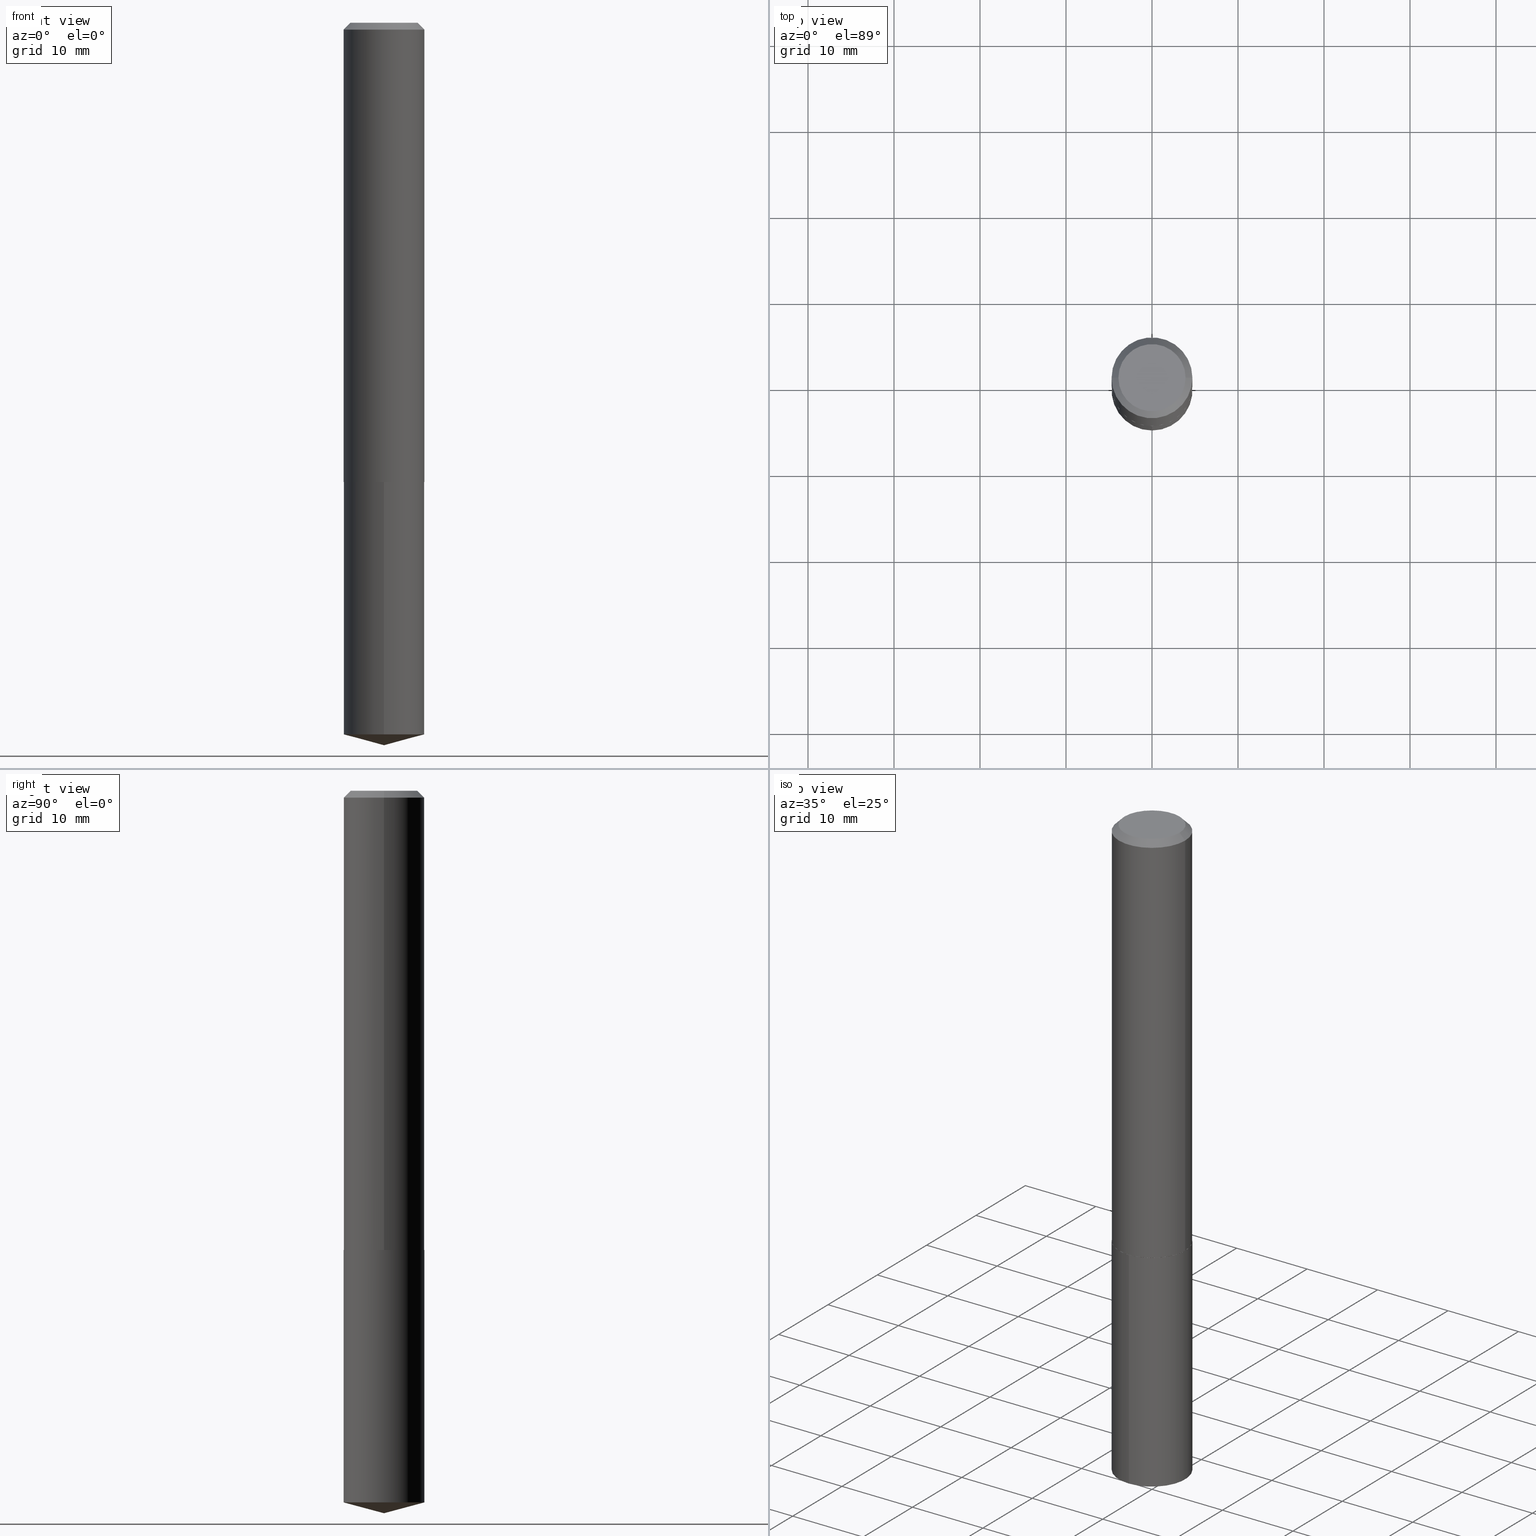
[diagram: canonical four-view strip — front | top / right | iso, engineering-drawing reading convention]
A machine part, canonical four-view strip (front | top / right | iso — engineering-drawing reading convention). The complete STEP part file that produces these views, byte-faithful:
ISO-10303-21;
HEADER;
FILE_DESCRIPTION (( 'STEP AP203' ),
    '1' );
FILE_NAME ('63083.STEP',
    '2024-04-23T09:47:31',
    ( '' ),
    ( '' ),
    'SwSTEP 2.0',
    'SolidWorks 2023',
    '' );
FILE_SCHEMA (( 'CONFIG_CONTROL_DESIGN' ));
ENDSEC;

DATA;
#1 = CARTESIAN_POINT ( 'NONE',  ( 5.140130883720539947E-29, -7.338744626114409370E-15, -2.101900000000000546 ) ) ;
#2 = VECTOR ( 'NONE', #124, 39.37007874015748143 ) ;
#3 = DIRECTION ( 'NONE',  ( 1.000000000000000000, -6.982962677686267499E-15, 4.876175355846217494E-29 ) ) ;
#4 = CARTESIAN_POINT ( 'NONE',  ( -0.1850500000000000200, 1.183088451666994778E-15, -0.03125000000000021511 ) ) ;
#5 = CARTESIAN_POINT ( 'NONE',  ( 5.140130883720539947E-29, -7.338744626114409370E-15, -2.101900000000000546 ) ) ;
#6 = PRODUCT_RELATED_PRODUCT_CATEGORY ( 'detail', '', ( #90 ) ) ;
#7 = CIRCLE ( 'NONE', #369, 0.1537999999999999645 ) ;
#8 = DIRECTION ( 'NONE',  ( -1.000000000000000000, 6.982962677686265922E-15, -4.876176775795935793E-29 ) ) ;
#9 = CARTESIAN_POINT ( 'NONE',  ( 0.1850500000000002143, -8.630941869620254432E-15, -2.101900000000000546 ) ) ;
#10 = ADVANCED_FACE ( 'NONE', ( #360 ), #247, .T. ) ;
#11 = ORIENTED_EDGE ( 'NONE', *, *, #121, .T. ) ;
#12 = DIRECTION ( 'NONE',  ( -2.445468806185136597E-29, 3.491481338843145583E-15, 1.000000000000000000 ) ) ;
#13 = AXIS2_PLACEMENT_3D ( 'NONE', #324, #278, #215 ) ;
#14 = CONICAL_SURFACE ( 'NONE', #256, 0.1850500000000002143, 0.7853981633974141952 ) ;
#15 = DIRECTION ( 'NONE',  ( -2.445315056571583283E-29, 3.491701517040638842E-15, 1.000000000000000000 ) ) ;
#16 = ORIENTED_EDGE ( 'NONE', *, *, #366, .F. ) ;
#17 = CARTESIAN_POINT ( 'NONE',  ( 5.141353618123632749E-29, -7.340490366783830084E-15, -2.102400000000000713 ) ) ;
#18 = VERTEX_POINT ( 'NONE', #44 ) ;
#19 = APPROVAL_ROLE ( '' ) ;
#20 = VERTEX_POINT ( 'NONE', #347 ) ;
#21 = PERSON_AND_ORGANIZATION_ROLE ( 'creator' ) ;
#22 = CARTESIAN_POINT ( 'NONE',  ( 8.087553578885345458E-29, -1.154648028172027664E-14, -3.307100000000000151 ) ) ;
#23 = AXIS2_PLACEMENT_3D ( 'NONE', #102, #218, #259 ) ;
#24 = ORIENTED_EDGE ( 'NONE', *, *, #111, .F. ) ;
#25 = CALENDAR_DATE ( 2024, 23, 4 ) ;
#26 = DIRECTION ( 'NONE',  ( 1.000000000000000000, -6.982962677686268288E-15, 0.000000000000000000 ) ) ;
#27 = DATE_TIME_ROLE ( 'creation_date' ) ;
#28 = ORIENTED_EDGE ( 'NONE', *, *, #43, .T. ) ;
#29 = LINE ( 'NONE', #151, #192 ) ;
#30 = ORIENTED_EDGE ( 'NONE', *, *, #121, .F. ) ;
#31 = APPROVAL ( #140, 'UNSPECIFIED' ) ;
#32 = DIRECTION ( 'NONE',  ( -2.445315056571583283E-29, 3.491701517040638842E-15, 1.000000000000000000 ) ) ;
#33 = AXIS2_PLACEMENT_3D ( 'NONE', #269, #83, #81 ) ;
#34 = DIRECTION ( 'NONE',  ( -2.445468806185136597E-29, 3.491481338843145583E-15, 1.000000000000000000 ) ) ;
#35 = LOCAL_TIME ( 5, 47, 31.00000000000000000, #267 ) ;
#36 = FACE_OUTER_BOUND ( 'NONE', #330, .T. ) ;
#37 = CARTESIAN_POINT ( 'NONE',  ( 7.965976169755803543E-29, -1.137381066311781496E-14, -3.257516001940621742 ) ) ;
#38 = AXIS2_PLACEMENT_3D ( 'NONE', #183, #317, #42 ) ;
#39 = DIRECTION ( 'NONE',  ( 1.000000000000000000, -6.982962677686268288E-15, 0.000000000000000000 ) ) ;
#40 = DIRECTION ( 'NONE',  ( -2.445315056571583283E-29, 3.491701517040638842E-15, 1.000000000000000000 ) ) ;
#41 = VERTEX_POINT ( 'NONE', #186 ) ;
#42 = DIRECTION ( 'NONE',  ( 1.000000000000000000, -6.982962677686265922E-15, 0.000000000000000000 ) ) ;
#43 = EDGE_CURVE ( 'NONE', #315, #116, #270, .T. ) ;
#44 = CARTESIAN_POINT ( 'NONE',  ( -0.1537999999999999645, 1.128534055747571411E-15, 2.449293598217711460E-19 ) ) ;
#45 = ORIENTED_EDGE ( 'NONE', *, *, #364, .F. ) ;
#46 = FACE_OUTER_BOUND ( 'NONE', #162, .T. ) ;
#47 = EDGE_LOOP ( 'NONE', ( #318, #104, #11, #108 ) ) ;
#48 =( NAMED_UNIT ( * ) SI_UNIT ( $, .STERADIAN. ) SOLID_ANGLE_UNIT ( ) );
#49 = LINE ( 'NONE', #281, #113 ) ;
#50 = ORIENTED_EDGE ( 'NONE', *, *, #364, .T. ) ;
#51 = CYLINDRICAL_SURFACE ( 'NONE', #33, 0.1850500000000001311 ) ;
#52 = MANIFOLD_SOLID_BREP ( 'Body-Move/Copy2[1]', #177 ) ;
#53 = LOCAL_TIME ( 5, 47, 31.00000000000000000, #286 ) ;
#54 = ORIENTED_EDGE ( 'NONE', *, *, #161, .F. ) ;
#55 = EDGE_CURVE ( 'NONE', #252, #71, #283, .T. ) ;
#56 = DIRECTION ( 'NONE',  ( 6.863315791527696626E-15, 0.9659258262890698665, 0.2588190451025147998 ) ) ;
#57 = MANIFOLD_SOLID_BREP ( 'Body-Move/Copy2[2]', #213 ) ;
#58 = EDGE_CURVE ( 'NONE', #41, #71, #288, .T. ) ;
#59 = ORIENTED_EDGE ( 'NONE', *, *, #260, .T. ) ;
#60 = ORIENTED_EDGE ( 'NONE', *, *, #139, .F. ) ;
#61 = APPROVAL_PERSON_ORGANIZATION ( #147, #31, #262 ) ;
#62 = APPROVAL_STATUS ( 'not_yet_approved' ) ;
#63 = CARTESIAN_POINT ( 'NONE',  ( -0.1850500000000001311, 1.314859332524066325E-15, -9.102489384516709155E-30 ) ) ;
#64 = PERSON_AND_ORGANIZATION ( #216, #178 ) ;
#65 = CARTESIAN_POINT ( 'NONE',  ( 5.141353618123632749E-29, -7.340490366783830084E-15, -2.102400000000000713 ) ) ;
#66 = CIRCLE ( 'NONE', #13, 0.1850500000000000200 ) ;
#67 = APPROVAL_PERSON_ORGANIZATION ( #201, #77, #150 ) ;
#68 = DIRECTION ( 'NONE',  ( 2.438088387897960049E-29, -3.491481338843145188E-15, -1.000000000000000000 ) ) ;
#69 = PRODUCT_DEFINITION_SHAPE ( 'NONE', 'NONE',  #372 ) ;
#70 = DIRECTION ( 'NONE',  ( -2.445315056571583283E-29, 3.491701517040638842E-15, 1.000000000000000000 ) ) ;
#71 = VERTEX_POINT ( 'NONE', #128 ) ;
#72 = PLANE ( 'NONE',  #376 ) ;
#73 = DIRECTION ( 'NONE',  ( 0.7071067811865232589, -2.468850131082003836E-15, 0.7071067811865715536 ) ) ;
#74 = ORIENTED_EDGE ( 'NONE', *, *, #139, .T. ) ;
#75 = PERSON_AND_ORGANIZATION_ROLE ( 'creator' ) ;
#76 = EDGE_LOOP ( 'NONE', ( #146, #380, #165, #187 ) ) ;
#77 = APPROVAL ( #62, 'UNSPECIFIED' ) ;
#78 = FACE_OUTER_BOUND ( 'NONE', #106, .T. ) ;
#79 = VERTEX_POINT ( 'NONE', #223 ) ;
#80 = PERSON_AND_ORGANIZATION ( #216, #178 ) ;
#81 = DIRECTION ( 'NONE',  ( 1.000000000000000000, -6.982962677686267499E-15, 4.876176775795935793E-29 ) ) ;
#82 = ADVANCED_FACE ( 'NONE', ( #46 ), #131, .T. ) ;
#83 = DIRECTION ( 'NONE',  ( -2.445468806185136597E-29, 3.491481338843145583E-15, 1.000000000000000000 ) ) ;
#84 = AXIS2_PLACEMENT_3D ( 'NONE', #37, #70, #343 ) ;
#85 = EDGE_LOOP ( 'NONE', ( #295, #60, #250, #325 ) ) ;
#86 = AXIS2_PLACEMENT_3D ( 'NONE', #87, #327, #173 ) ;
#87 = CARTESIAN_POINT ( 'NONE',  ( 5.141353618123632749E-29, -7.340490366783830084E-15, -2.102400000000000713 ) ) ;
#88 = DESIGN_CONTEXT ( 'detailed design', #313, 'design' ) ;
#89 = CARTESIAN_POINT ( 'NONE',  ( 5.141353618123632749E-29, -7.340490366783830084E-15, -2.102400000000000713 ) ) ;
#90 = PRODUCT ( '63083', '63083', '', ( #137 ) ) ;
#91 = FACE_OUTER_BOUND ( 'NONE', #76, .T. ) ;
#92 = CONICAL_SURFACE ( 'NONE', #320, 146.9311341562565758, 1.308996938995749870 ) ;
#93 = FACE_OUTER_BOUND ( 'NONE', #176, .T. ) ;
#94 = EDGE_CURVE ( 'NONE', #71, #138, #66, .T. ) ;
#95 = EDGE_CURVE ( 'NONE', #200, #266, #49, .T. ) ;
#96 = DIRECTION ( 'NONE',  ( -2.438088387897960049E-29, 3.491481338843145188E-15, 1.000000000000000000 ) ) ;
#97 = AXIS2_PLACEMENT_3D ( 'NONE', #65, #308, #175 ) ;
#98 = CARTESIAN_POINT ( 'NONE',  ( 0.1850500000000000200, -1.378643946326470928E-15, -0.03125000000000021511 ) ) ;
#99 = CARTESIAN_POINT ( 'NONE',  ( 5.140130883720539947E-29, -7.338744626114409370E-15, -2.101900000000000546 ) ) ;
#100 = LINE ( 'NONE', #9, #265 ) ;
#101 = ORIENTED_EDGE ( 'NONE', *, *, #287, .T. ) ;
#102 = CARTESIAN_POINT ( 'NONE',  ( 0.000000000000000000, 0.000000000000000000, 0.000000000000000000 ) ) ;
#103 = CARTESIAN_POINT ( 'NONE',  ( 5.141353618123632749E-29, -7.340490366783830084E-15, -2.102400000000000713 ) ) ;
#104 = ORIENTED_EDGE ( 'NONE', *, *, #161, .T. ) ;
#105 = DIRECTION ( 'NONE',  ( -2.445468806185136877E-29, 3.491481338843145188E-15, 1.000000000000000000 ) ) ;
#106 = EDGE_LOOP ( 'NONE', ( #135, #101, #16 ) ) ;
#107 = CARTESIAN_POINT ( 'NONE',  ( 1.314859332524116418E-15, 0.1850499999999926370, -2.102400000000001157 ) ) ;
#108 = ORIENTED_EDGE ( 'NONE', *, *, #359, .F. ) ;
#109 = CALENDAR_DATE ( 2024, 23, 4 ) ;
#110 = CARTESIAN_POINT ( 'NONE',  ( 5.141353618123632749E-29, -7.340490366783830084E-15, -2.102400000000000713 ) ) ;
#111 = EDGE_CURVE ( 'NONE', #285, #20, #339, .T. ) ;
#112 = APPROVAL_DATE_TIME ( #228, #31 ) ;
#113 = VECTOR ( 'NONE', #134, 39.37007874015748854 ) ;
#114 = SECURITY_CLASSIFICATION ( '', '', #143 ) ;
#115 = ORIENTED_EDGE ( 'NONE', *, *, #94, .F. ) ;
#116 = VERTEX_POINT ( 'NONE', #188 ) ;
#117 = ORIENTED_EDGE ( 'NONE', *, *, #95, .T. ) ;
#118 = FACE_OUTER_BOUND ( 'NONE', #383, .T. ) ;
#119 = VECTOR ( 'NONE', #229, 39.37007874015748143 ) ;
#120 = DIRECTION ( 'NONE',  ( -0.7071067811865454633, 2.468850131082235761E-15, -0.7071067811865493491 ) ) ;
#121 = EDGE_CURVE ( 'NONE', #79, #41, #100, .T. ) ;
#122 = DIRECTION ( 'NONE',  ( -2.445468806185136597E-29, 3.491481338843145583E-15, 1.000000000000000000 ) ) ;
#123 = ADVANCED_FACE ( 'NONE', ( #78 ), #92, .T. ) ;
#124 = DIRECTION ( 'NONE',  ( -2.445315056571583283E-29, 3.491701517040638842E-15, 1.000000000000000000 ) ) ;
#125 = AXIS2_PLACEMENT_3D ( 'NONE', #268, #122, #355 ) ;
#126 = AXIS2_PLACEMENT_3D ( 'NONE', #110, #32, #385 ) ;
#127 = CARTESIAN_POINT ( 'NONE',  ( 5.141353618123632749E-29, -7.340490366783830084E-15, -2.102400000000000713 ) ) ;
#128 = CARTESIAN_POINT ( 'NONE',  ( 0.1850500000000000200, -1.401306035344692979E-15, -0.03125000000000021511 ) ) ;
#129 = DIRECTION ( 'NONE',  ( -2.445315056571583283E-29, 3.491701517040638842E-15, 1.000000000000000000 ) ) ;
#130 = ORIENTED_EDGE ( 'NONE', *, *, #233, .T. ) ;
#131 = CONICAL_SURFACE ( 'NONE', #356, 146.9311341562565758, 1.308996938995749870 ) ;
#132 = CC_DESIGN_APPROVAL ( #31, ( #236 ) ) ;
#133 = ADVANCED_FACE ( 'NONE', ( #164 ), #212, .F. ) ;
#134 = DIRECTION ( 'NONE',  ( -0.7071067811865232589, 7.493145998870265808E-15, 0.7071067811865715536 ) ) ;
#135 = ORIENTED_EDGE ( 'NONE', *, *, #275, .F. ) ;
#136 = ORIENTED_EDGE ( 'NONE', *, *, #58, .F. ) ;
#137 = MECHANICAL_CONTEXT ( 'NONE', #345, 'mechanical' ) ;
#138 = VERTEX_POINT ( 'NONE', #145 ) ;
#139 = EDGE_CURVE ( 'NONE', #18, #252, #163, .T. ) ;
#140 = APPROVAL_STATUS ( 'not_yet_approved' ) ;
#141 = FACE_OUTER_BOUND ( 'NONE', #179, .T. ) ;
#142 = EDGE_LOOP ( 'NONE', ( #28, #130, #24, #45 ) ) ;
#143 = SECURITY_CLASSIFICATION_LEVEL ( 'unclassified' ) ;
#144 = CC_DESIGN_DATE_AND_TIME_ASSIGNMENT ( #237, #306, ( #114 ) ) ;
#145 = CARTESIAN_POINT ( 'NONE',  ( -0.1850500000000000200, -2.409067376452562318E-15, -0.03125000000000021511 ) ) ;
#146 = ORIENTED_EDGE ( 'NONE', *, *, #230, .F. ) ;
#147 = PERSON_AND_ORGANIZATION ( #216, #178 ) ;
#148 = CALENDAR_DATE ( 2024, 23, 4 ) ;
#149 = CIRCLE ( 'NONE', #97, 0.1850499999999999923 ) ;
#150 = APPROVAL_ROLE ( '' ) ;
#151 = CARTESIAN_POINT ( 'NONE',  ( 8.086901423587882203E-29, -1.154740608700509621E-14, -3.307100000000000151 ) ) ;
#152 = ADVANCED_FACE ( 'NONE', ( #337 ), #51, .T. ) ;
#153 = FACE_OUTER_BOUND ( 'NONE', #142, .T. ) ;
#154 = AXIS2_PLACEMENT_3D ( 'NONE', #361, #227, #167 ) ;
#155 = VECTOR ( 'NONE', #273, 39.37007874015748143 ) ;
#156 = LINE ( 'NONE', #63, #155 ) ;
#157 = FACE_OUTER_BOUND ( 'NONE', #169, .T. ) ;
#158 = FACE_OUTER_BOUND ( 'NONE', #47, .T. ) ;
#159 = CARTESIAN_POINT ( 'NONE',  ( -1.292197243505792011E-15, -0.1850500000000073197, -2.102399999999999824 ) ) ;
#160 = DIRECTION ( 'NONE',  ( -6.982962677686265922E-15, -1.000000000000000000, 3.510303681827602962E-15 ) ) ;
#161 = EDGE_CURVE ( 'NONE', #200, #79, #382, .T. ) ;
#162 = EDGE_LOOP ( 'NONE', ( #224, #358, #322 ) ) ;
#163 = CIRCLE ( 'NONE', #125, 0.1537999999999999645 ) ;
#164 = FACE_OUTER_BOUND ( 'NONE', #205, .T. ) ;
#165 = ORIENTED_EDGE ( 'NONE', *, *, #94, .T. ) ;
#166 = DATE_AND_TIME ( #25, #53 ) ;
#167 = DIRECTION ( 'NONE',  ( -1.000000000000000000, 6.982962677686267499E-15, 0.000000000000000000 ) ) ;
#168 = DIRECTION ( 'NONE',  ( 2.445468806185136597E-29, -3.491481338843145583E-15, -1.000000000000000000 ) ) ;
#169 = EDGE_LOOP ( 'NONE', ( #74, #389 ) ) ;
#170 = CC_DESIGN_PERSON_AND_ORGANIZATION_ASSIGNMENT ( #346, #75, ( #236 ) ) ;
#171 = ADVANCED_FACE ( 'NONE', ( #118 ), #203, .T. ) ;
#172 = PERSON_AND_ORGANIZATION_ROLE ( 'design_supplier' ) ;
#173 = DIRECTION ( 'NONE',  ( 1.000000000000000000, -6.982962677686265922E-15, 0.000000000000000000 ) ) ;
#174 = ORIENTED_EDGE ( 'NONE', *, *, #58, .T. ) ;
#175 = DIRECTION ( 'NONE',  ( -6.982962677686265133E-15, -1.000000000000000000, 2.952551195530141356E-15 ) ) ;
#176 = EDGE_LOOP ( 'NONE', ( #289, #323, #174, #190 ) ) ;
#177 = CLOSED_SHELL ( 'NONE', ( #296, #82, #123, #222, #133 ) ) ;
#178 = ORGANIZATION ( 'UNSPECIFIED', 'UNSPECIFIED', '' ) ;
#179 = EDGE_LOOP ( 'NONE', ( #180, #258, #50, #333 ) ) ;
#180 = ORIENTED_EDGE ( 'NONE', *, *, #233, .F. ) ;
#181 = LINE ( 'NONE', #107, #119 ) ;
#182 = CARTESIAN_POINT ( 'NONE',  ( 7.642090019328604414E-31, -1.091087918388490513E-16, -0.03125000000000021511 ) ) ;
#183 = CARTESIAN_POINT ( 'NONE',  ( 5.141353618123632749E-29, -7.340490366783830084E-15, -2.102400000000000713 ) ) ;
#184 = CC_DESIGN_DATE_AND_TIME_ASSIGNMENT ( #293, #27, ( #372 ) ) ;
#185 = APPROVAL_PERSON_ORGANIZATION ( #80, #312, #19 ) ;
#186 = CARTESIAN_POINT ( 'NONE',  ( 0.1850500000000002143, -8.630941869620254432E-15, -2.101900000000000546 ) ) ;
#187 = ORIENTED_EDGE ( 'NONE', *, *, #245, .F. ) ;
#188 = CARTESIAN_POINT ( 'NONE',  ( 1.314859332524144620E-15, 0.1850499999999885847, -3.257516001940622186 ) ) ;
#189 = CARTESIAN_POINT ( 'NONE',  ( -8.818502165494045598E-28, 1.259216204786545882E-13, 36.06297874015748306 ) ) ;
#190 = ORIENTED_EDGE ( 'NONE', *, *, #211, .F. ) ;
#191 = AXIS2_PLACEMENT_3D ( 'NONE', #103, #246, #344 ) ;
#192 = VECTOR ( 'NONE', #305, 39.37007874015748143 ) ;
#193 = PERSON_AND_ORGANIZATION ( #216, #178 ) ;
#194 = DIRECTION ( 'NONE',  ( 6.982962677686265922E-15, 1.000000000000000000, -3.491701517040638842E-15 ) ) ;
#195 = EDGE_CURVE ( 'NONE', #41, #266, #357, .T. ) ;
#196 = DIRECTION ( 'NONE',  ( -1.000000000000000000, 6.982962677686267499E-15, 0.000000000000000000 ) ) ;
#197 = AXIS2_PLACEMENT_3D ( 'NONE', #340, #168, #196 ) ;
#198 = LINE ( 'NONE', #22, #232 ) ;
#199 = EDGE_CURVE ( 'NONE', #20, #285, #149, .T. ) ;
#200 = VERTEX_POINT ( 'NONE', #234 ) ;
#201 = PERSON_AND_ORGANIZATION ( #216, #178 ) ;
#202 = CC_DESIGN_PERSON_AND_ORGANIZATION_ASSIGNMENT ( #193, #257, ( #90 ) ) ;
#203 = CONICAL_SURFACE ( 'NONE', #311, 0.1850500000000002143, 0.7853981633974141952 ) ;
#204 = CC_DESIGN_APPROVAL ( #77, ( #114 ) ) ;
#205 = EDGE_LOOP ( 'NONE', ( #292, #390 ) ) ;
#206 = CARTESIAN_POINT ( 'NONE',  ( 5.140130883720539947E-29, -7.338744626114409370E-15, -2.101900000000000546 ) ) ;
#207 = CC_DESIGN_PERSON_AND_ORGANIZATION_ASSIGNMENT ( #326, #172, ( #236 ) ) ;
#208 = LINE ( 'NONE', #4, #328 ) ;
#209 = AXIS2_PLACEMENT_3D ( 'NONE', #377, #129, #291 ) ;
#210 = CARTESIAN_POINT ( 'NONE',  ( -2.994835545909349753E-48, 4.275831445897006817E-34, 1.224646799147362533E-19 ) ) ;
#211 = EDGE_CURVE ( 'NONE', #138, #71, #297, .T. ) ;
#212 = PLANE ( 'NONE',  #301 ) ;
#213 = CLOSED_SHELL ( 'NONE', ( #263, #152, #171, #338, #351, #384, #10, #354 ) ) ;
#214 = DIRECTION ( 'NONE',  ( 1.000000000000000000, -6.982962677686268288E-15, 0.000000000000000000 ) ) ;
#215 = DIRECTION ( 'NONE',  ( 1.000000000000000000, -6.982962677686267499E-15, 0.000000000000000000 ) ) ;
#216 = PERSON ( 'UNSPECIFIED', 'UNSPECIFIED', 'UNSPECIFIED', ('UNSPECIFIED'), ('UNSPECIFIED'), ('UNSPECIFIED') ) ;
#217 = DIRECTION ( 'NONE',  ( -2.445468806185136597E-29, 3.491481338843145583E-15, 1.000000000000000000 ) ) ;
#218 = DIRECTION ( 'NONE',  ( 0.000000000000000000, 0.000000000000000000, 1.000000000000000000 ) ) ;
#219 = ORIENTED_EDGE ( 'NONE', *, *, #195, .T. ) ;
#220 = AXIS2_PLACEMENT_3D ( 'NONE', #282, #12, #368 ) ;
#221 = APPROVAL_STATUS ( 'not_yet_approved' ) ;
#222 = ADVANCED_FACE ( 'NONE', ( #141 ), #261, .T. ) ;
#223 = CARTESIAN_POINT ( 'NONE',  ( 0.1845500000000003527, -8.629196128950833717E-15, -2.102400000000000713 ) ) ;
#224 = ORIENTED_EDGE ( 'NONE', *, *, #287, .F. ) ;
#225 = COORDINATED_UNIVERSAL_TIME_OFFSET ( 5, 0, .BEHIND. ) ;
#226 = DIRECTION ( 'NONE',  ( 1.000000000000000000, -6.982962677686267499E-15, 0.000000000000000000 ) ) ;
#227 = DIRECTION ( 'NONE',  ( 2.445468806185136597E-29, -3.491481338843145583E-15, -1.000000000000000000 ) ) ;
#228 = DATE_AND_TIME ( #353, #309 ) ;
#229 = DIRECTION ( 'NONE',  ( -2.445315056571583283E-29, 3.491701517040638842E-15, 1.000000000000000000 ) ) ;
#230 = EDGE_CURVE ( 'NONE', #252, #18, #7, .T. ) ;
#231 = SHAPE_DEFINITION_REPRESENTATION ( #69, #332 ) ;
#232 = VECTOR ( 'NONE', #56, 39.37007874015748143 ) ;
#233 = EDGE_CURVE ( 'NONE', #116, #20, #181, .T. ) ;
#234 = CARTESIAN_POINT ( 'NONE',  ( -0.1845500000000003527, -6.026534520764453260E-15, -2.102400000000000713 ) ) ;
#235 = CC_DESIGN_PERSON_AND_ORGANIZATION_ASSIGNMENT ( #253, #21, ( #372 ) ) ;
#236 = PRODUCT_DEFINITION_FORMATION_WITH_SPECIFIED_SOURCE ( 'ANY', '', #90, .NOT_KNOWN. ) ;
#237 = DATE_AND_TIME ( #148, #35 ) ;
#238 = CYLINDRICAL_SURFACE ( 'NONE', #241, 0.1850499999999999923 ) ;
#239 = DIRECTION ( 'NONE',  ( -2.445468806185136597E-29, 3.491481338843145583E-15, 1.000000000000000000 ) ) ;
#240 = CYLINDRICAL_SURFACE ( 'NONE', #220, 0.1850500000000001311 ) ;
#241 = AXIS2_PLACEMENT_3D ( 'NONE', #89, #280, #277 ) ;
#242 = LINE ( 'NONE', #159, #2 ) ;
#243 = DIRECTION ( 'NONE',  ( -2.445468806185136597E-29, 3.491481338843145583E-15, 1.000000000000000000 ) ) ;
#244 = CARTESIAN_POINT ( 'NONE',  ( -8.818502165494045598E-28, 1.259216204786545882E-13, 36.06297874015748306 ) ) ;
#245 = EDGE_CURVE ( 'NONE', #18, #138, #208, .T. ) ;
#246 = DIRECTION ( 'NONE',  ( -2.445315056571583283E-29, 3.491701517040638842E-15, 1.000000000000000000 ) ) ;
#247 = CONICAL_SURFACE ( 'NONE', #154, 0.1850500000000000200, 0.7853981633974456145 ) ;
#248 = CIRCLE ( 'NONE', #84, 0.1850499999999999923 ) ;
#249 = CC_DESIGN_SECURITY_CLASSIFICATION ( #114, ( #236 ) ) ;
#250 = ORIENTED_EDGE ( 'NONE', *, *, #245, .T. ) ;
#251 = DIRECTION ( 'NONE',  ( 2.445315056571582723E-29, -3.491701517040638842E-15, -1.000000000000000000 ) ) ;
#252 = VERTEX_POINT ( 'NONE', #365 ) ;
#253 = PERSON_AND_ORGANIZATION ( #216, #178 ) ;
#254 = DIRECTION ( 'NONE',  ( 0.7071067811865454633, -7.319954787623246579E-15, -0.7071067811865493491 ) ) ;
#255 = VERTEX_POINT ( 'NONE', #363 ) ;
#256 = AXIS2_PLACEMENT_3D ( 'NONE', #99, #217, #39 ) ;
#257 = PERSON_AND_ORGANIZATION_ROLE ( 'design_owner' ) ;
#258 = ORIENTED_EDGE ( 'NONE', *, *, #366, .T. ) ;
#259 = DIRECTION ( 'NONE',  ( 1.000000000000000000, 0.000000000000000000, 0.000000000000000000 ) ) ;
#260 = EDGE_CURVE ( 'NONE', #266, #138, #156, .T. ) ;
#261 = CYLINDRICAL_SURFACE ( 'NONE', #126, 0.1850499999999999923 ) ;
#262 = APPROVAL_ROLE ( '' ) ;
#263 = ADVANCED_FACE ( 'NONE', ( #91 ), #342, .T. ) ;
#264 = EDGE_LOOP ( 'NONE', ( #219, #59, #115, #136 ) ) ;
#265 = VECTOR ( 'NONE', #73, 39.37007874015748854 ) ;
#266 = VERTEX_POINT ( 'NONE', #294 ) ;
#267 = COORDINATED_UNIVERSAL_TIME_OFFSET ( 5, 0, .BEHIND. ) ;
#268 = CARTESIAN_POINT ( 'NONE',  ( -5.989671091818699506E-48, 8.551662891794013634E-34, 2.449293598294725065E-19 ) ) ;
#269 = CARTESIAN_POINT ( 'NONE',  ( 0.000000000000000000, 0.000000000000000000, 0.000000000000000000 ) ) ;
#270 = CIRCLE ( 'NONE', #209, 0.1850499999999999923 ) ;
#271 = CC_DESIGN_APPROVAL ( #312, ( #372 ) ) ;
#272 = COORDINATED_UNIVERSAL_TIME_OFFSET ( 5, 0, .BEHIND. ) ;
#273 = DIRECTION ( 'NONE',  ( -2.445468806185136877E-29, 3.491481338843145188E-15, 1.000000000000000000 ) ) ;
#274 = DIRECTION ( 'NONE',  ( 1.000000000000000000, -6.982962677686265922E-15, 4.876176775795935793E-29 ) ) ;
#275 = EDGE_CURVE ( 'NONE', #255, #116, #198, .T. ) ;
#276 = CIRCLE ( 'NONE', #38, 0.1845500000000003527 ) ;
#277 = DIRECTION ( 'NONE',  ( -6.982962677686265133E-15, -1.000000000000000000, 2.952551195530141356E-15 ) ) ;
#278 = DIRECTION ( 'NONE',  ( -2.445468806185136597E-29, 3.491481338843145583E-15, 1.000000000000000000 ) ) ;
#279 = CC_DESIGN_PERSON_AND_ORGANIZATION_ASSIGNMENT ( #64, #334, ( #114 ) ) ;
#280 = DIRECTION ( 'NONE',  ( -2.445315056571583283E-29, 3.491701517040638842E-15, 1.000000000000000000 ) ) ;
#281 = CARTESIAN_POINT ( 'NONE',  ( -0.1850500000000002143, -6.023885293590342059E-15, -2.101900000000000546 ) ) ;
#282 = CARTESIAN_POINT ( 'NONE',  ( 0.000000000000000000, 0.000000000000000000, 0.000000000000000000 ) ) ;
#283 = LINE ( 'NONE', #98, #375 ) ;
#284 = AXIS2_PLACEMENT_3D ( 'NONE', #182, #336, #226 ) ;
#285 = VERTEX_POINT ( 'NONE', #300 ) ;
#286 = COORDINATED_UNIVERSAL_TIME_OFFSET ( 5, 0, .BEHIND. ) ;
#287 = EDGE_CURVE ( 'NONE', #255, #315, #29, .T. ) ;
#288 = LINE ( 'NONE', #373, #307 ) ;
#289 = ORIENTED_EDGE ( 'NONE', *, *, #260, .F. ) ;
#290 = APPROVAL_DATE_TIME ( #166, #312 ) ;
#291 = DIRECTION ( 'NONE',  ( -6.982962677686265133E-15, -1.000000000000000000, 2.952551195530141356E-15 ) ) ;
#292 = ORIENTED_EDGE ( 'NONE', *, *, #111, .T. ) ;
#293 = DATE_AND_TIME ( #109, #388 ) ;
#294 = CARTESIAN_POINT ( 'NONE',  ( -0.1850500000000002143, -6.023885293590342059E-15, -2.101900000000000546 ) ) ;
#295 = ORIENTED_EDGE ( 'NONE', *, *, #55, .F. ) ;
#296 = ADVANCED_FACE ( 'NONE', ( #153 ), #238, .T. ) ;
#297 = CIRCLE ( 'NONE', #284, 0.1850500000000000200 ) ;
#298 = APPLICATION_PROTOCOL_DEFINITION ( 'international standard', 'config_control_design', 1994, #313 ) ;
#299 = DIRECTION ( 'NONE',  ( -2.445468806185136597E-29, 3.491481338843145583E-15, 1.000000000000000000 ) ) ;
#300 = CARTESIAN_POINT ( 'NONE',  ( -1.292197243505792011E-15, -0.1850500000000073197, -2.102399999999999824 ) ) ;
#301 = AXIS2_PLACEMENT_3D ( 'NONE', #17, #251, #194 ) ;
#302 = DATE_AND_TIME ( #331, #370 ) ;
#303 = CIRCLE ( 'NONE', #349, 0.1850500000000002143 ) ;
#304 = APPROVAL_DATE_TIME ( #302, #77 ) ;
#305 = DIRECTION ( 'NONE',  ( -6.745023994389843077E-15, -0.9659258262890679791, 0.2588190451025215721 ) ) ;
#306 = DATE_TIME_ROLE ( 'classification_date' ) ;
#307 = VECTOR ( 'NONE', #105, 39.37007874015748143 ) ;
#308 = DIRECTION ( 'NONE',  ( -2.445315056571583283E-29, 3.491701517040638842E-15, 1.000000000000000000 ) ) ;
#309 = LOCAL_TIME ( 5, 47, 31.00000000000000000, #225 ) ;
#310 =( CONVERSION_BASED_UNIT ( 'INCH', #371 ) LENGTH_UNIT ( ) NAMED_UNIT ( #387 ) );
#311 = AXIS2_PLACEMENT_3D ( 'NONE', #206, #299, #26 ) ;
#312 = APPROVAL ( #221, 'UNSPECIFIED' ) ;
#313 = APPLICATION_CONTEXT ( 'configuration controlled 3d designs of mechanical parts and assemblies' ) ;
#314 = DIRECTION ( 'NONE',  ( -6.982962677686265922E-15, -1.000000000000000000, 3.510303681827602962E-15 ) ) ;
#315 = VERTEX_POINT ( 'NONE', #374 ) ;
#316 = UNCERTAINTY_MEASURE_WITH_UNIT (LENGTH_MEASURE( 1.000000000000000082E-05 ), #310, 'distance_accuracy_value', 'NONE');
#317 = DIRECTION ( 'NONE',  ( -2.445468806185136597E-29, 3.491481338843145583E-15, 1.000000000000000000 ) ) ;
#318 = ORIENTED_EDGE ( 'NONE', *, *, #95, .F. ) ;
#319 =( NAMED_UNIT ( * ) PLANE_ANGLE_UNIT ( ) SI_UNIT ( $, .RADIAN. ) );
#320 = AXIS2_PLACEMENT_3D ( 'NONE', #244, #15, #314 ) ;
#321 = AXIS2_PLACEMENT_3D ( 'NONE', #1, #239, #329 ) ;
#322 = ORIENTED_EDGE ( 'NONE', *, *, #43, .F. ) ;
#323 = ORIENTED_EDGE ( 'NONE', *, *, #359, .T. ) ;
#324 = CARTESIAN_POINT ( 'NONE',  ( 7.642090019328604414E-31, -1.091087918388490513E-16, -0.03125000000000021511 ) ) ;
#325 = ORIENTED_EDGE ( 'NONE', *, *, #211, .T. ) ;
#326 = PERSON_AND_ORGANIZATION ( #216, #178 ) ;
#327 = DIRECTION ( 'NONE',  ( -2.445468806185136597E-29, 3.491481338843145583E-15, 1.000000000000000000 ) ) ;
#328 = VECTOR ( 'NONE', #120, 39.37007874015748854 ) ;
#329 = DIRECTION ( 'NONE',  ( 1.000000000000000000, -6.982962677686268288E-15, 0.000000000000000000 ) ) ;
#330 = EDGE_LOOP ( 'NONE', ( #350, #54 ) ) ;
#331 = CALENDAR_DATE ( 2024, 23, 4 ) ;
#332 = ADVANCED_BREP_SHAPE_REPRESENTATION ( '63083', ( #52, #57, #23 ), #362 ) ;
#333 = ORIENTED_EDGE ( 'NONE', *, *, #199, .F. ) ;
#334 = PERSON_AND_ORGANIZATION_ROLE ( 'classification_officer' ) ;
#335 = AXIS2_PLACEMENT_3D ( 'NONE', #127, #96, #274 ) ;
#336 = DIRECTION ( 'NONE',  ( -2.445468806185136597E-29, 3.491481338843145583E-15, 1.000000000000000000 ) ) ;
#337 = FACE_OUTER_BOUND ( 'NONE', #264, .T. ) ;
#338 = ADVANCED_FACE ( 'NONE', ( #36 ), #378, .F. ) ;
#339 = CIRCLE ( 'NONE', #191, 0.1850499999999999923 ) ;
#340 = CARTESIAN_POINT ( 'NONE',  ( 7.642090019328604414E-31, -1.091087918388490513E-16, -0.03125000000000021511 ) ) ;
#341 =( LENGTH_UNIT ( ) NAMED_UNIT ( * ) SI_UNIT ( $, .METRE. ) );
#342 = CONICAL_SURFACE ( 'NONE', #197, 0.1850500000000000200, 0.7853981633974456145 ) ;
#343 = DIRECTION ( 'NONE',  ( -6.982962677686265133E-15, -1.000000000000000000, 2.952551195530141356E-15 ) ) ;
#344 = DIRECTION ( 'NONE',  ( -6.982962677686265133E-15, -1.000000000000000000, 2.952551195530141356E-15 ) ) ;
#345 = APPLICATION_CONTEXT ( 'configuration controlled 3d designs of mechanical parts and assemblies' ) ;
#346 = PERSON_AND_ORGANIZATION ( #216, #178 ) ;
#347 = CARTESIAN_POINT ( 'NONE',  ( 1.314859332524144817E-15, 0.1850499999999926370, -2.102400000000001157 ) ) ;
#348 = ORIENTED_EDGE ( 'NONE', *, *, #195, .F. ) ;
#349 = AXIS2_PLACEMENT_3D ( 'NONE', #5, #243, #214 ) ;
#350 = ORIENTED_EDGE ( 'NONE', *, *, #379, .F. ) ;
#351 = ADVANCED_FACE ( 'NONE', ( #158 ), #14, .T. ) ;
#352 = ORIENTED_EDGE ( 'NONE', *, *, #379, .T. ) ;
#353 = CALENDAR_DATE ( 2024, 23, 4 ) ;
#354 = ADVANCED_FACE ( 'NONE', ( #157 ), #72, .F. ) ;
#355 = DIRECTION ( 'NONE',  ( 1.000000000000000000, -6.982962677686267499E-15, 4.876175355846217494E-29 ) ) ;
#356 = AXIS2_PLACEMENT_3D ( 'NONE', #189, #40, #160 ) ;
#357 = CIRCLE ( 'NONE', #321, 0.1850500000000002143 ) ;
#358 = ORIENTED_EDGE ( 'NONE', *, *, #275, .T. ) ;
#359 = EDGE_CURVE ( 'NONE', #266, #41, #303, .T. ) ;
#360 = FACE_OUTER_BOUND ( 'NONE', #85, .T. ) ;
#361 = CARTESIAN_POINT ( 'NONE',  ( 7.642090019328604414E-31, -1.091087918388490513E-16, -0.03125000000000021511 ) ) ;
#362 =( GEOMETRIC_REPRESENTATION_CONTEXT ( 3 ) GLOBAL_UNCERTAINTY_ASSIGNED_CONTEXT ( ( #316 ) ) GLOBAL_UNIT_ASSIGNED_CONTEXT ( ( #310, #319, #48 ) ) REPRESENTATION_CONTEXT ( 'NONE', 'WORKASPACE' ) );
#363 = CARTESIAN_POINT ( 'NONE',  ( 8.086901423587883324E-29, -1.154740608700509621E-14, -3.307100000000000151 ) ) ;
#364 = EDGE_CURVE ( 'NONE', #315, #285, #242, .T. ) ;
#365 = CARTESIAN_POINT ( 'NONE',  ( 0.1537999999999999645, -1.216894269191866197E-15, 2.449293598374824010E-19 ) ) ;
#366 = EDGE_CURVE ( 'NONE', #116, #315, #248, .T. ) ;
#367 = CARTESIAN_POINT ( 'NONE',  ( -5.989671091818699506E-48, 8.551662891794013634E-34, 2.449293598294725065E-19 ) ) ;
#368 = DIRECTION ( 'NONE',  ( 1.000000000000000000, -6.982962677686267499E-15, 4.876176775795935793E-29 ) ) ;
#369 = AXIS2_PLACEMENT_3D ( 'NONE', #367, #34, #3 ) ;
#370 = LOCAL_TIME ( 5, 47, 31.00000000000000000, #272 ) ;
#371 = LENGTH_MEASURE_WITH_UNIT ( LENGTH_MEASURE( 0.02539999999999999897 ), #341 );
#372 = PRODUCT_DEFINITION ( 'UNKNOWN', '', #236, #88 ) ;
#373 = CARTESIAN_POINT ( 'NONE',  ( 0.1850500000000001311, -1.292197243505844668E-15, 9.023365123610386073E-30 ) ) ;
#374 = CARTESIAN_POINT ( 'NONE',  ( -1.292197243505763612E-15, -0.1850500000000113165, -3.257516001940621297 ) ) ;
#375 = VECTOR ( 'NONE', #254, 39.37007874015748854 ) ;
#376 = AXIS2_PLACEMENT_3D ( 'NONE', #210, #68, #8 ) ;
#377 = CARTESIAN_POINT ( 'NONE',  ( 7.965976169755803543E-29, -1.137381066311781496E-14, -3.257516001940621742 ) ) ;
#378 = PLANE ( 'NONE',  #335 ) ;
#379 = EDGE_CURVE ( 'NONE', #79, #200, #276, .T. ) ;
#380 = ORIENTED_EDGE ( 'NONE', *, *, #55, .T. ) ;
#381 = COORDINATED_UNIVERSAL_TIME_OFFSET ( 5, 0, .BEHIND. ) ;
#382 = CIRCLE ( 'NONE', #86, 0.1845500000000003527 ) ;
#383 = EDGE_LOOP ( 'NONE', ( #352, #117, #348, #30 ) ) ;
#384 = ADVANCED_FACE ( 'NONE', ( #93 ), #240, .T. ) ;
#385 = DIRECTION ( 'NONE',  ( -6.982962677686265133E-15, -1.000000000000000000, 2.952551195530141356E-15 ) ) ;
#386 = APPLICATION_PROTOCOL_DEFINITION ( 'international standard', 'config_control_design', 1994, #345 ) ;
#387 = DIMENSIONAL_EXPONENTS ( 1.000000000000000000, 0.000000000000000000, 0.000000000000000000, 0.000000000000000000, 0.000000000000000000, 0.000000000000000000, 0.000000000000000000 ) ;
#388 = LOCAL_TIME ( 5, 47, 31.00000000000000000, #381 ) ;
#389 = ORIENTED_EDGE ( 'NONE', *, *, #230, .T. ) ;
#390 = ORIENTED_EDGE ( 'NONE', *, *, #199, .T. ) ;
ENDSEC;
END-ISO-10303-21;
